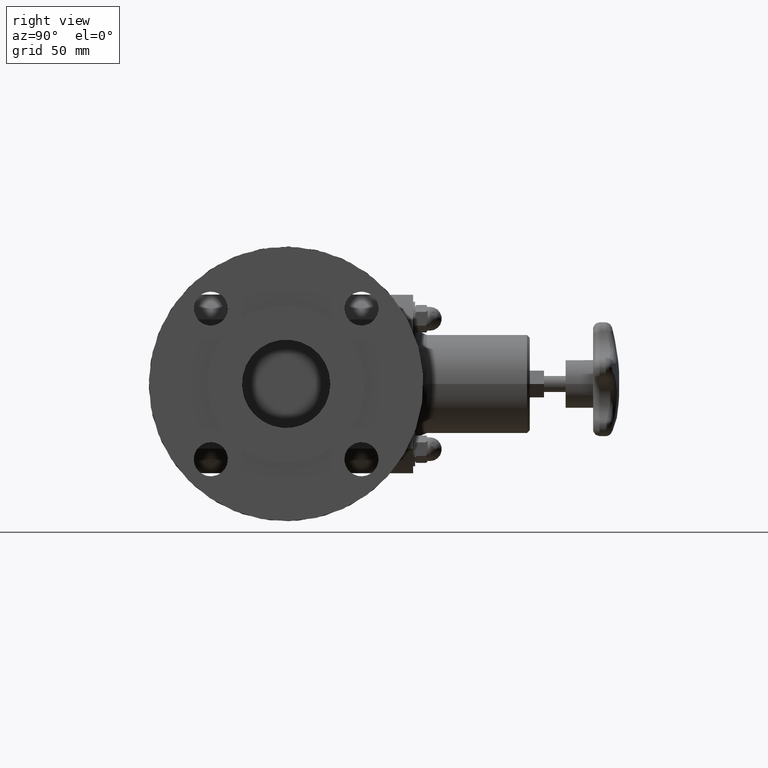
[diagram: clean part render]
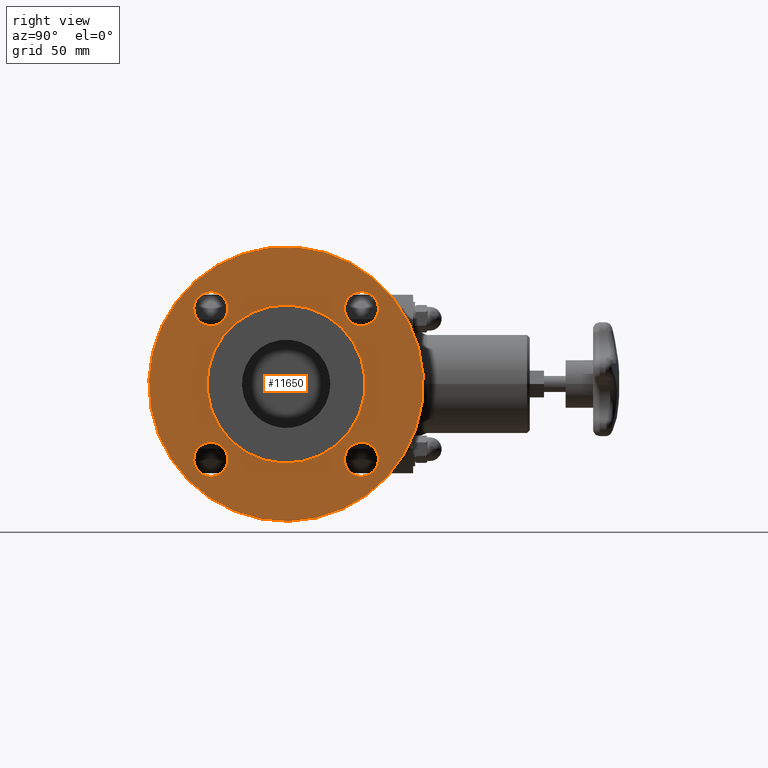
[diagram: same view with one face highlighted and labeled with its STEP entity id]
A machine part, right view. The second image highlights one B-rep face of the part: STEP entity #11650.
In plain terms, the highlighted planar face has unit normal (1, 0, 0).
Its self-contained STEP definition (entity closure, byte-faithful):
#11475=CARTESIAN_POINT('',(4.385000000010001,0.017752459199520,1.459064410158452));
#11476=VERTEX_POINT('',#11475);
#11477=CARTESIAN_POINT('',(4.385000000010001,0.315212844491045,1.371787155508963));
#11478=DIRECTION('',(1.0,-3.734826E-016,3.734826E-016));
#11479=DIRECTION('',(-5.281841E-016,-0.707106781186553,0.707106781186542));
#11480=AXIS2_PLACEMENT_3D('',#11477,#11478,#11479);
#11481=CIRCLE('',#11480,0.310000000001000);
#11482=EDGE_CURVE('',#11476,#11476,#11481,.T.);
#11492=CARTESIAN_POINT('',(4.385000000010002,2.390848827852926,2.398874074971572));
#11493=VERTEX_POINT('',#11492);
#11494=CARTESIAN_POINT('',(4.385000000010002,1.687000000000029,9.904845E-016));
#11495=DIRECTION('',(1.0,-3.734826E-016,3.734826E-016));
#11496=DIRECTION('',(-5.281841E-016,-0.707106781186553,0.707106781186542));
#11497=AXIS2_PLACEMENT_3D('',#11494,#11495,#11496);
#11498=CIRCLE('',#11497,2.500000000010000);
#11499=EDGE_CURVE('',#11493,#11493,#11498,.T.);
#11591=CARTESIAN_POINT('',(4.385000000010002,2.092416924848983,1.381751467185747));
#11592=VERTEX_POINT('',#11591);
#11593=CARTESIAN_POINT('',(4.385000000010002,1.687000000000029,9.904845E-016));
#11594=DIRECTION('',(1.000000000000000,-3.734826E-016,3.734826E-016));
#11595=DIRECTION('',(-5.281841E-016,-0.707106781186553,0.707106781186542));
#11596=AXIS2_PLACEMENT_3D('',#11593,#11594,#11595);
#11597=CIRCLE('',#11596,1.440000000010000);
#11598=EDGE_CURVE('',#11592,#11592,#11597,.T.);
#11603=CARTESIAN_POINT('',(4.385000000010003,2.705233764915721,1.018233764915709));
#11604=DIRECTION('',(1.0,0.0,0.0));
#11605=DIRECTION('',(0.0,0.707106781186553,-0.707106781186542));
#11606=AXIS2_PLACEMENT_3D('',#11603,#11604,#11605);
#11607=PLANE('',#11606);
#11608=ORIENTED_EDGE('',*,*,#11499,.T.);
#11609=EDGE_LOOP('',(#11608));
#11610=FACE_OUTER_BOUND('',#11609,.T.);
#11611=ORIENTED_EDGE('',*,*,#11482,.F.);
#11612=EDGE_LOOP('',(#11611));
#11613=FACE_BOUND('',#11612,.T.);
#11614=ORIENTED_EDGE('',*,*,#11598,.F.);
#11615=EDGE_LOOP('',(#11614));
#11616=FACE_BOUND('',#11615,.T.);
#11617=CARTESIAN_POINT('',(4.385000000010001,0.227935589841579,-1.669247540800509));
#11618=VERTEX_POINT('',#11617);
#11619=CARTESIAN_POINT('',(4.385000000010001,0.315212844491068,-1.371787155508984));
#11620=DIRECTION('',(1.0,-3.734826E-016,3.734826E-016));
#11621=DIRECTION('',(-5.281841E-016,-0.707106781186553,0.707106781186542));
#11622=AXIS2_PLACEMENT_3D('',#11619,#11620,#11621);
#11623=CIRCLE('',#11622,0.310000000001000);
#11624=EDGE_CURVE('',#11618,#11618,#11623,.T.);
#11625=ORIENTED_EDGE('',*,*,#11624,.F.);
#11626=EDGE_LOOP('',(#11625));
#11627=FACE_BOUND('',#11626,.T.);
#11628=CARTESIAN_POINT('',(4.385000000010003,3.356247540800540,-1.459064410158450));
#11629=VERTEX_POINT('',#11628);
#11630=CARTESIAN_POINT('',(4.385000000010003,3.058787155509014,-1.371787155508961));
#11631=DIRECTION('',(1.0,-3.734826E-016,3.734826E-016));
#11632=DIRECTION('',(-5.281841E-016,-0.707106781186553,0.707106781186542));
#11633=AXIS2_PLACEMENT_3D('',#11630,#11631,#11632);
#11634=CIRCLE('',#11633,0.310000000001000);
#11635=EDGE_CURVE('',#11629,#11629,#11634,.T.);
#11636=ORIENTED_EDGE('',*,*,#11635,.F.);
#11637=EDGE_LOOP('',(#11636));
#11638=FACE_BOUND('',#11637,.T.);
#11639=CARTESIAN_POINT('',(4.385000000010003,3.146064410158480,1.669247540800511));
#11640=VERTEX_POINT('',#11639);
#11641=CARTESIAN_POINT('',(4.385000000010003,3.058787155508992,1.371787155508986));
#11642=DIRECTION('',(1.0,-3.734826E-016,3.734826E-016));
#11643=DIRECTION('',(-5.281841E-016,-0.707106781186553,0.707106781186542));
#11644=AXIS2_PLACEMENT_3D('',#11641,#11642,#11643);
#11645=CIRCLE('',#11644,0.310000000001000);
#11646=EDGE_CURVE('',#11640,#11640,#11645,.T.);
#11647=ORIENTED_EDGE('',*,*,#11646,.F.);
#11648=EDGE_LOOP('',(#11647));
#11649=FACE_BOUND('',#11648,.T.);
#11650=ADVANCED_FACE('',(#11610,#11613,#11616,#11627,#11638,#11649),#11607,.T.);